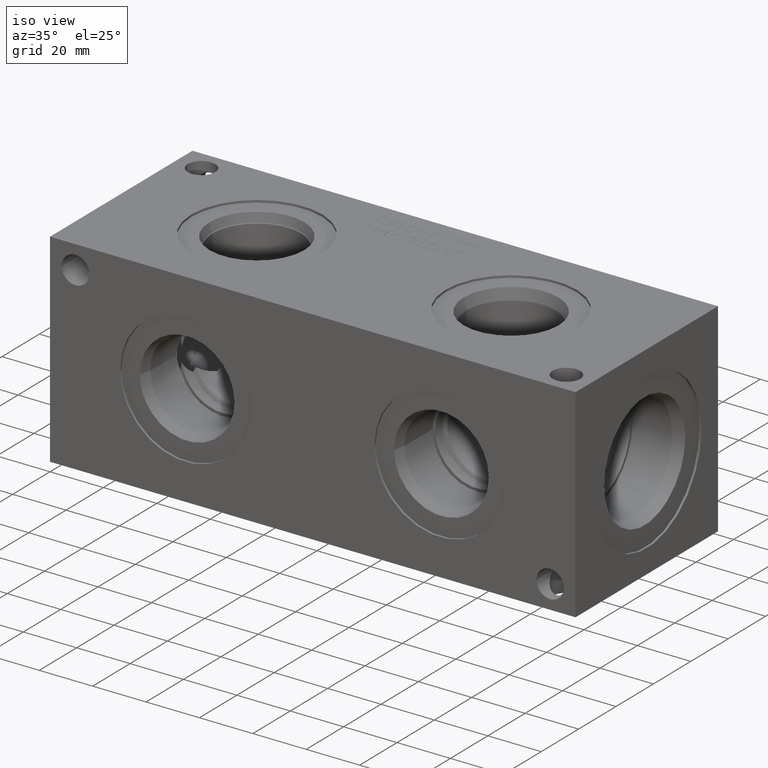
[diagram: clean part render]
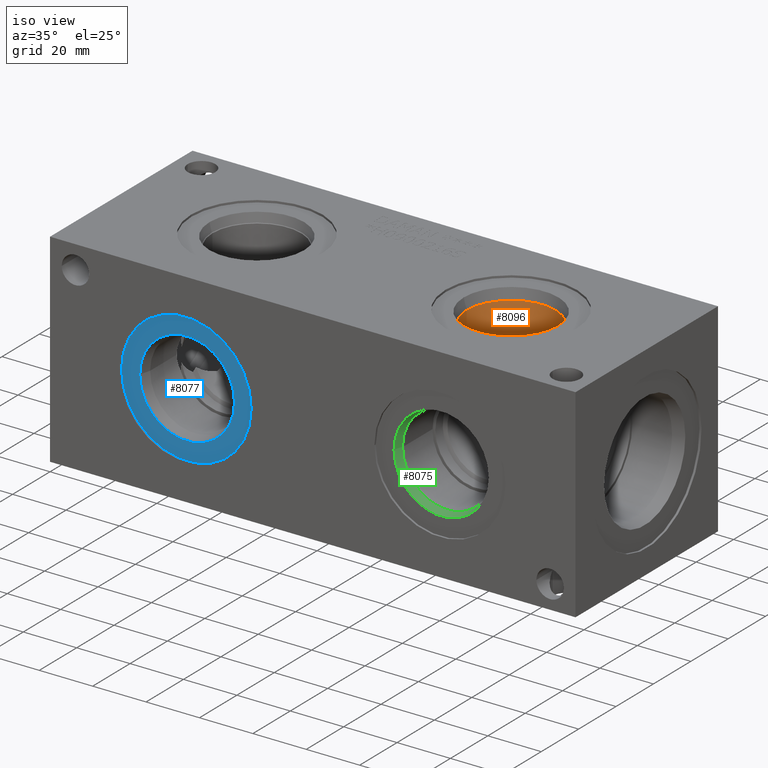
[diagram: same view with three faces highlighted in distinct colors, each labeled with its STEP entity id]
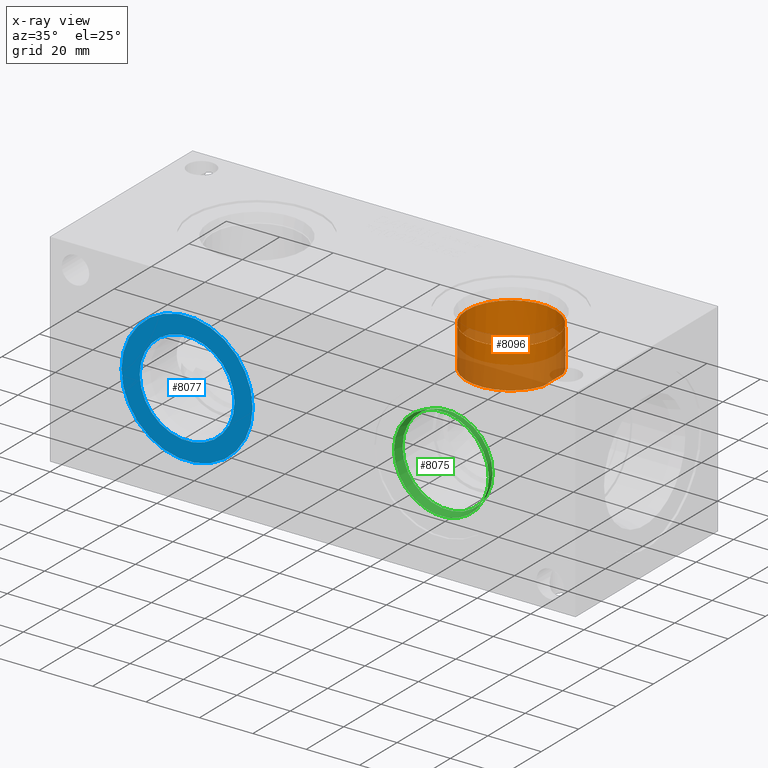
[diagram: x-ray of the same camera — body ghosted, the three highlighted faces saturated]
A machine part, iso view with three faces highlighted in distinct colors.
The next image is the same camera in x-ray (body ghosted, the three faces saturated) — at least one of them is partly hidden behind the body in this view.
Their STEP definitions:

[orange] entity #8096 — the highlighted cylindrical surface (bore or boss wall) has radius 16.6751 mm, axis along (0, 0, 1).
#102=CYLINDRICAL_SURFACE('',#8504,16.6751);
#192=CIRCLE('',#8502,16.6751);
#193=CIRCLE('',#8503,16.6751);
#194=CIRCLE('',#8505,16.6751);
#574=B_SPLINE_CURVE_WITH_KNOTS('',3,(#14188,#14189,#14190,#14191,#14192,
#14193,#14194,#14195,#14196,#14197),.UNSPECIFIED.,.F.,.F.,(4,2,2,2,4),(2.22089325223237,
2.43211778457251,2.76779636109291,3.10347493761331,3.31469946995344),
 .UNSPECIFIED.);
#1061=FACE_OUTER_BOUND('',#1508,.T.);
#1508=EDGE_LOOP('',(#6967,#6968,#6969,#6970,#6971,#6972));
#2241=LINE('',#14187,#2955);
#2955=VECTOR('',#9987,16.6751);
#3694=VERTEX_POINT('',#14177);
#3695=VERTEX_POINT('',#14179);
#3696=VERTEX_POINT('',#14181);
#3697=VERTEX_POINT('',#14185);
#4806=EDGE_CURVE('',#3694,#3695,#192,.T.);
#4807=EDGE_CURVE('',#3695,#3696,#193,.T.);
#4809=EDGE_CURVE('',#3697,#3697,#194,.T.);
#4810=EDGE_CURVE('',#3697,#3695,#2241,.T.);
#4811=EDGE_CURVE('',#3696,#3694,#574,.T.);
#6967=ORIENTED_EDGE('',*,*,#4809,.F.);
#6968=ORIENTED_EDGE('',*,*,#4810,.T.);
#6969=ORIENTED_EDGE('',*,*,#4806,.F.);
#6970=ORIENTED_EDGE('',*,*,#4811,.F.);
#6971=ORIENTED_EDGE('',*,*,#4807,.F.);
#6972=ORIENTED_EDGE('',*,*,#4810,.F.);
#8096=ADVANCED_FACE('',(#1061),#102,.F.);
#8502=AXIS2_PLACEMENT_3D('',#14180,#9978,#9979);
#8503=AXIS2_PLACEMENT_3D('',#14182,#9980,#9981);
#8504=AXIS2_PLACEMENT_3D('',#14184,#9983,#9984);
#8505=AXIS2_PLACEMENT_3D('',#14186,#9985,#9986);
#9978=DIRECTION('center_axis',(0.,0.,1.));
#9979=DIRECTION('ref_axis',(1.,0.,0.));
#9980=DIRECTION('center_axis',(0.,0.,1.));
#9981=DIRECTION('ref_axis',(1.,0.,0.));
#9983=DIRECTION('center_axis',(0.,0.,1.));
#9984=DIRECTION('ref_axis',(1.,0.,0.));
#9985=DIRECTION('center_axis',(0.,0.,-1.));
#9986=DIRECTION('ref_axis',(1.,0.,0.));
#9987=DIRECTION('',(0.,0.,-1.));
#14177=CARTESIAN_POINT('',(161.819559878766,43.5203266728123,56.3626));
#14179=CARTESIAN_POINT('',(129.3749,38.1,56.3626));
#14180=CARTESIAN_POINT('Origin',(146.05,38.1,56.3626));
#14181=CARTESIAN_POINT('',(161.819559878766,32.6796733271877,56.3626));
#14182=CARTESIAN_POINT('Origin',(146.05,38.1,56.3626));
#14184=CARTESIAN_POINT('Origin',(146.05,38.1,66.2813));
#14185=CARTESIAN_POINT('',(129.3749,38.1,71.3763211532294));
#14186=CARTESIAN_POINT('Origin',(146.05,38.1,71.3763211532294));
#14187=CARTESIAN_POINT('',(129.3749,38.1,66.2813));
#14188=CARTESIAN_POINT('Ctrl Pts',(161.819559878766,32.6796733271877,56.3626));
#14189=CARTESIAN_POINT('Ctrl Pts',(162.049310402761,33.3480951519235,56.5609871215109));
#14190=CARTESIAN_POINT('Ctrl Pts',(162.238082854768,34.0363244136683,56.7250521717093));
#14191=CARTESIAN_POINT('Ctrl Pts',(162.610706075436,35.8447197143579,57.0496148423198));
#14192=CARTESIAN_POINT('Ctrl Pts',(162.7251,36.9810714115987,57.15));
#14193=CARTESIAN_POINT('Ctrl Pts',(162.7251,39.2189285884013,57.15));
#14194=CARTESIAN_POINT('Ctrl Pts',(162.610706075436,40.3552802856422,57.0496148423198));
#14195=CARTESIAN_POINT('Ctrl Pts',(162.238082854768,42.1636755863317,56.7250521717093));
#14196=CARTESIAN_POINT('Ctrl Pts',(162.049310402761,42.8519048480765,56.5609871215109));
#14197=CARTESIAN_POINT('Ctrl Pts',(161.819559878766,43.5203266728123,56.3626));

[blue] entity #8077 — the highlighted planar face has unit normal (0, -1, 0).
#174=CIRCLE('',#8458,24.5618);
#175=CIRCLE('',#8459,24.5618);
#176=CIRCLE('',#8460,17.7546);
#277=FACE_BOUND('',#1488,.T.);
#1042=FACE_OUTER_BOUND('',#1487,.T.);
#1487=EDGE_LOOP('',(#6863,#6864));
#1488=EDGE_LOOP('',(#6865));
#3668=VERTEX_POINT('',#14041);
#3669=VERTEX_POINT('',#14042);
#3670=VERTEX_POINT('',#14045);
#4761=EDGE_CURVE('',#3668,#3669,#174,.T.);
#4762=EDGE_CURVE('',#3669,#3668,#175,.T.);
#4763=EDGE_CURVE('',#3670,#3670,#176,.T.);
#6863=ORIENTED_EDGE('',*,*,#4761,.T.);
#6864=ORIENTED_EDGE('',*,*,#4762,.T.);
#6865=ORIENTED_EDGE('',*,*,#4763,.F.);
#7399=PLANE('',#8457);
#8077=ADVANCED_FACE('',(#1042,#277),#7399,.T.);
#8457=AXIS2_PLACEMENT_3D('',#14040,#9873,#9874);
#8458=AXIS2_PLACEMENT_3D('',#14043,#9875,#9876);
#8459=AXIS2_PLACEMENT_3D('',#14044,#9877,#9878);
#8460=AXIS2_PLACEMENT_3D('',#14046,#9879,#9880);
#9873=DIRECTION('center_axis',(0.,-1.,0.));
#9874=DIRECTION('ref_axis',(1.,0.,0.));
#9875=DIRECTION('center_axis',(0.,-1.,0.));
#9876=DIRECTION('ref_axis',(1.,0.,0.));
#9877=DIRECTION('center_axis',(0.,-1.,0.));
#9878=DIRECTION('ref_axis',(1.,0.,0.));
#9879=DIRECTION('center_axis',(0.,-1.,0.));
#9880=DIRECTION('ref_axis',(1.,0.,0.));
#14040=CARTESIAN_POINT('Origin',(50.8,0.7874,38.1));
#14041=CARTESIAN_POINT('',(75.3618,0.7874,38.1));
#14042=CARTESIAN_POINT('',(26.2382,0.7874,38.1));
#14043=CARTESIAN_POINT('Origin',(50.8,0.7874,38.1));
#14044=CARTESIAN_POINT('Origin',(50.8,0.7874,38.1));
#14045=CARTESIAN_POINT('',(33.0454,0.7874,38.1));
#14046=CARTESIAN_POINT('Origin',(50.8,0.7874,38.1));

[green] entity #8075 — the highlighted conical surface has half-angle 15 deg.
#43=CONICAL_SURFACE('',#8453,8.8773,0.261799387799149);
#169=CIRCLE('',#8449,16.8783);
#172=CIRCLE('',#8454,17.7546);
#173=CIRCLE('',#8455,17.7546);
#1040=FACE_OUTER_BOUND('',#1485,.T.);
#1485=EDGE_LOOP('',(#6852,#6853,#6854,#6855,#6856));
#2223=LINE('',#14035,#2937);
#2937=VECTOR('',#9867,8.8773);
#3662=VERTEX_POINT('',#14022);
#3665=VERTEX_POINT('',#14032);
#3666=VERTEX_POINT('',#14033);
#4752=EDGE_CURVE('',#3662,#3662,#169,.T.);
#4757=EDGE_CURVE('',#3665,#3666,#172,.T.);
#4758=EDGE_CURVE('',#3666,#3662,#2223,.T.);
#4759=EDGE_CURVE('',#3666,#3665,#173,.T.);
#6852=ORIENTED_EDGE('',*,*,#4757,.T.);
#6853=ORIENTED_EDGE('',*,*,#4758,.T.);
#6854=ORIENTED_EDGE('',*,*,#4752,.T.);
#6855=ORIENTED_EDGE('',*,*,#4758,.F.);
#6856=ORIENTED_EDGE('',*,*,#4759,.T.);
#8075=ADVANCED_FACE('',(#1040),#43,.F.);
#8449=AXIS2_PLACEMENT_3D('',#14023,#9853,#9854);
#8453=AXIS2_PLACEMENT_3D('',#14031,#9863,#9864);
#8454=AXIS2_PLACEMENT_3D('',#14034,#9865,#9866);
#8455=AXIS2_PLACEMENT_3D('',#14036,#9868,#9869);
#9853=DIRECTION('center_axis',(0.,1.,0.));
#9854=DIRECTION('ref_axis',(1.,0.,0.));
#9863=DIRECTION('center_axis',(0.,-1.,0.));
#9864=DIRECTION('ref_axis',(1.,0.,0.));
#9865=DIRECTION('center_axis',(0.,-1.,0.));
#9866=DIRECTION('ref_axis',(1.,0.,0.));
#9867=DIRECTION('',(0.258819045102521,0.965925826289068,3.16961915143176E-17));
#9868=DIRECTION('center_axis',(0.,-1.,0.));
#9869=DIRECTION('ref_axis',(1.,0.,0.));
#14022=CARTESIAN_POINT('',(129.1717,4.0653261226726,38.1));
#14023=CARTESIAN_POINT('Origin',(146.05,4.0653261226726,38.1));
#14031=CARTESIAN_POINT('Origin',(146.05,33.9254646340312,38.1));
#14032=CARTESIAN_POINT('',(163.8046,0.79493,38.1));
#14033=CARTESIAN_POINT('',(128.2954,0.794929999999998,38.1));
#14034=CARTESIAN_POINT('Origin',(146.05,0.79493,38.1));
#14035=CARTESIAN_POINT('',(137.1727,33.9254646340312,38.1));
#14036=CARTESIAN_POINT('Origin',(146.05,0.79493,38.1));